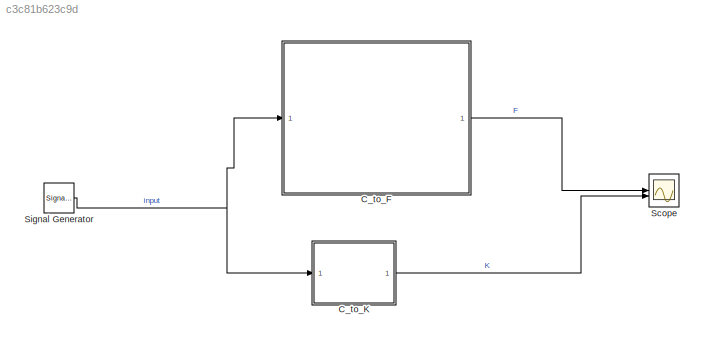
MODEL slx_c3c81b623c9d
KIND model
CONFIG AbsTol = auto
CONFIG EnableMultiTasking = off
CONFIG FixedStep = auto
CONFIG MaxStep = auto
CONFIG MinStep = auto
CONFIG RelTol = 1e-3
CONFIG SampleTimeConstraint = Unconstrained
CONFIG SolverName = VariableStepAuto
CONFIG StartTime = 0.0
CONFIG StopTime = 10.0
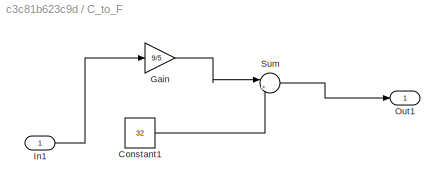
BLOCK [SubSystem] C_to_F
BLOCK [Constant] C_to_F/Constant1
  Value = 32
BLOCK [Gain] C_to_F/Gain
  Gain = 9/5
BLOCK [Inport] C_to_F/In1
BLOCK [Outport] C_to_F/Out1
BLOCK [Sum] C_to_F/Sum
  Inputs = |++
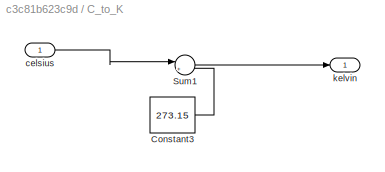
BLOCK [SubSystem] C_to_K
  TreatAsAtomicUnit = on
BLOCK [Constant] C_to_K/Constant3
  Value = 273.15
BLOCK [Sum] C_to_K/Sum1
  Inputs = |++
BLOCK [Inport] C_to_K/celsius
BLOCK [Outport] C_to_K/kelvin
BLOCK [Scope] Scope
  Floating = off
  NumInputPorts = 2
  ScopeSpecificationString = Simulink.scopes.TimeScopeBlockCfg('CurrentConfiguration', extmgr.ConfigurationSet(extmgr.Configuration('Core','General UI',true),extmgr.Configuration('Core','Source UI',true),extmgr.Configuration('Sources','WiredSimulink',true),extmgr.Configuration('Visuals','Time Domain',true,'SerializedDisplays',{struct('MinYLimReal','-40.47538','MaxYLimReal','329.82115','YLabelReal','','MinYLimMag','0.00000','M...<+2727ch>
BLOCK [SignalGenerator] Signal Generator
  Amplitude = 20
  Units = rad/sec
  WaveForm = random
LINE C_to_F/Constant1:1 -> C_to_F/Sum:2
LINE C_to_F/Gain:1 -> C_to_F/Sum:1
LINE C_to_F/In1:1 -> C_to_F/Gain:1
LINE C_to_F/Sum:1 -> C_to_F/Out1:1
LINE C_to_F:1 -> Scope:1
LINE C_to_K/Constant3:1 -> C_to_K/Sum1:2
LINE C_to_K/Sum1:1 -> C_to_K/kelvin:1
LINE C_to_K/celsius:1 -> C_to_K/Sum1:1
LINE C_to_K:1 -> Scope:2
NET Signal Generator:1 -> C_to_F:1, C_to_K:1
note: NET lines group one-source signal fan-out (src -> all destinations, sorted); 1:1 wires keep LINE
